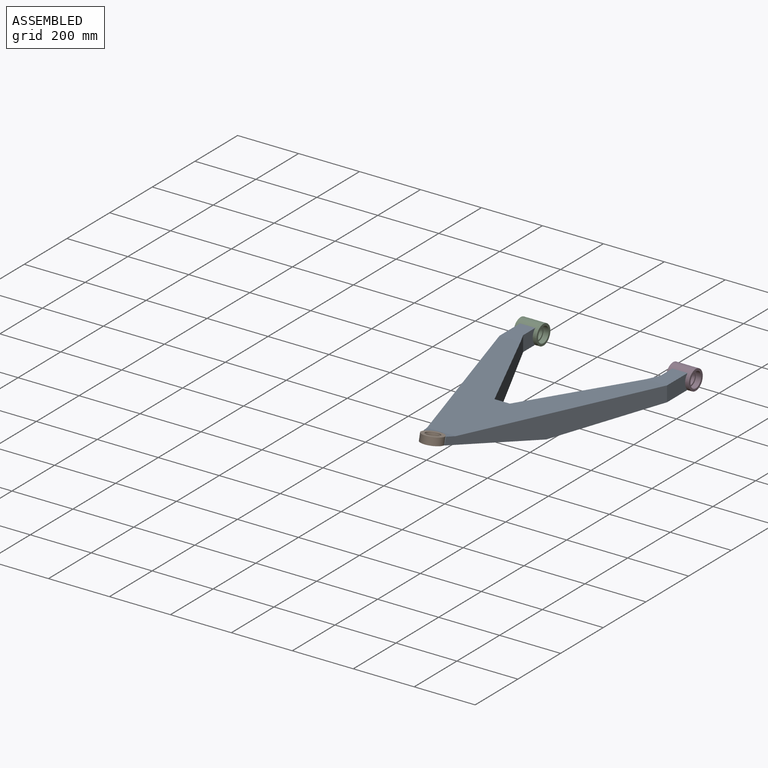
[diagram: assembled view]
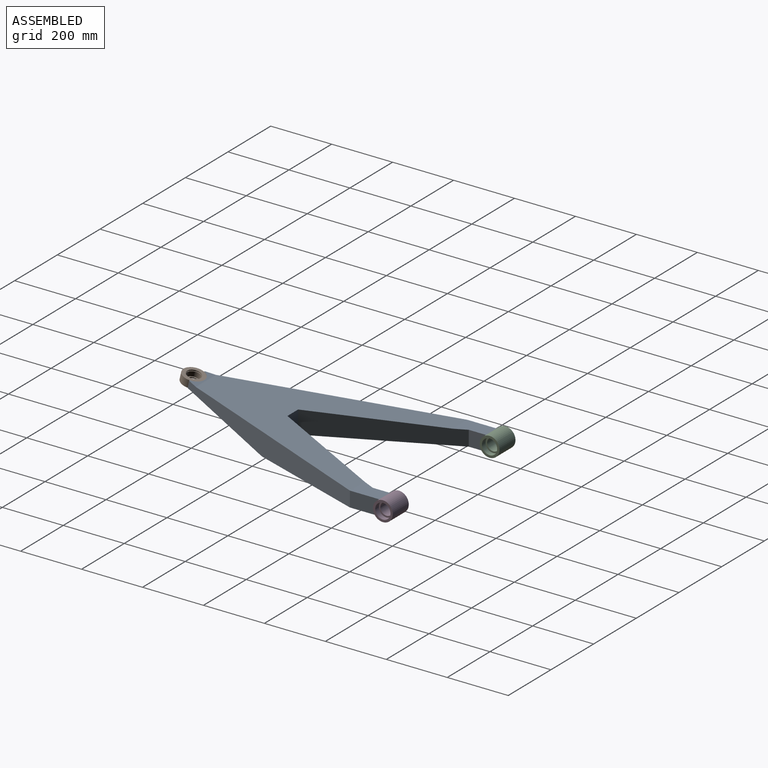
[diagram: assembled view, second angle]
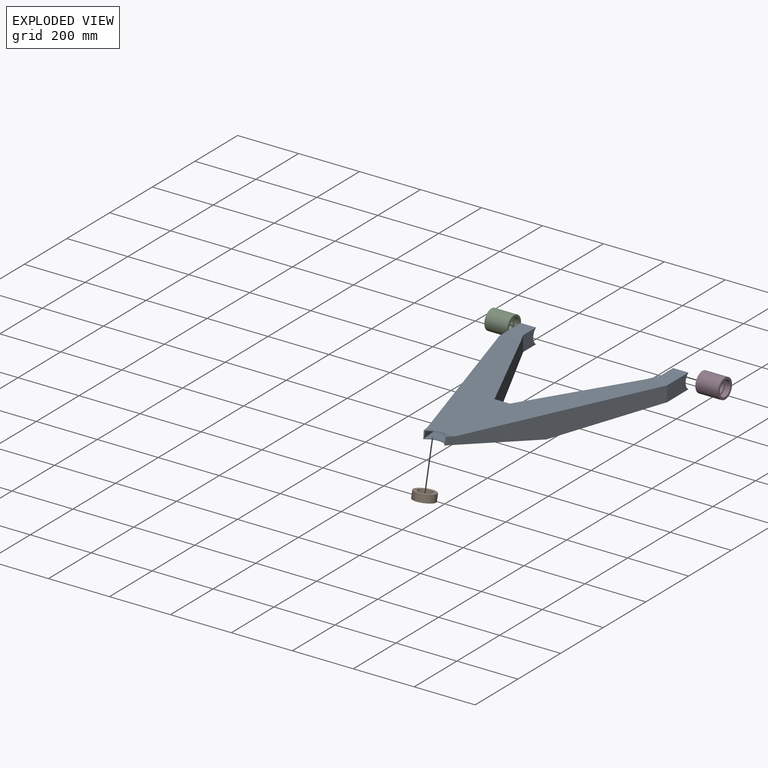
[diagram: exploded view]
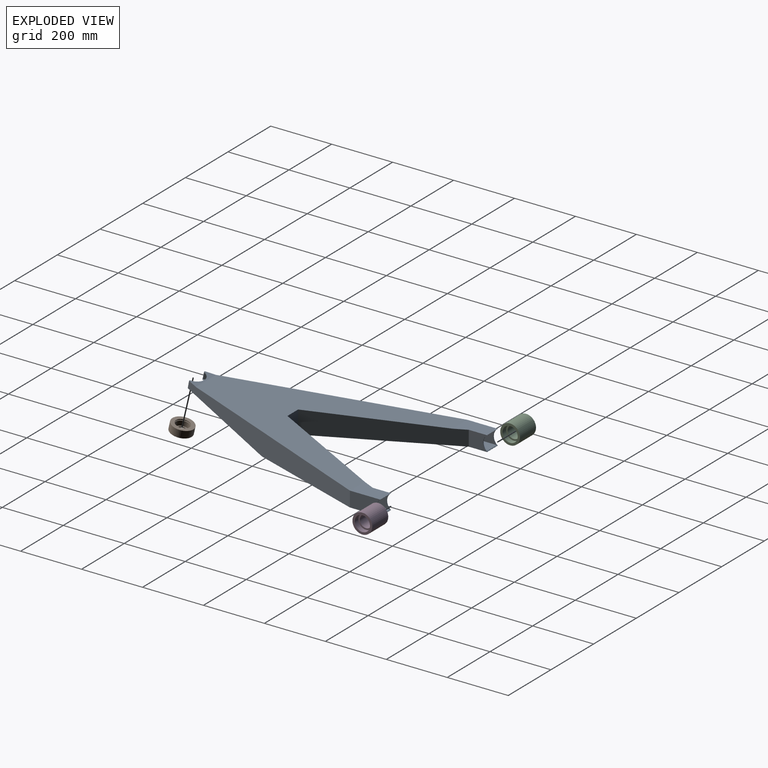
[diagram: exploded view, second angle]
ASSEMBLY  parts=4 mates=3
PART A: 43 faces, bbox 550x800x99.3 mm
  f0: cylinder r=35mm len=67.08mm, axis (0,0.23,0.97), area 447.2mm2, adj f5,f6,f22,f23,f26,f27,f41,f42
  f1: cylinder r=30mm len=50mm, axis (1,0,0), area 493.8mm2, adj f3,f15,f16,f17,f28,f35,f36,f39
  f2: plane 50x0.28mm, normal (0,1,0), area 14.1mm2, adj f4,f11,f19,f24
  f3: plane 50x0.28mm, normal (0,1,0), area 14.1mm2, adj f1,f15,f17,f20
  f4: plane 100x50mm, normal (1,0,0), area 4548.7mm2, adj f2,f8,f9,f10,f19,f24
  f5: plane 24.34x5.7mm, normal (0,-0.97,0.23), area 60.9mm2, adj f0,f6,f9,f23
  f6: plane 93.94x29.21mm, normal (0,0.23,0.97), area 1283.9mm2, adj f0,f5,f9,f18,f21,f22
  f7: plane 480x250mm, normal (0,0,-1), area 41245.7mm2, adj f14,f15,f16,f17,f18,f23
  f8: plane 480x250mm, normal (0,0,-1), area 41245.7mm2, adj f4,f9,f10,f11,f12,f23
  f9: plane 700x240mm, normal (0.95,-0.32,0), area 40895.1mm2, adj f4,f5,f6,f8,f21,f23
  f10: plane 50x0.28mm, normal (0,1,0), area 14.1mm2, adj f4,f8,f11,f24
  f11: plane 60x50mm, normal (-1,0,0), area 2548.7mm2, adj f2,f8,f10,f12,f19,f24
  f12: plane 420x200mm, normal (-0.9,0.43,0), area 28368.8mm2, adj f8,f11,f13,f19,f21
  f13: plane 74.28x50mm, normal (0,1,0), area 3714mm2, adj f12,f14,f21,f23
  f14: plane 420x200mm, normal (0.9,0.43,0), area 28368.8mm2, adj f7,f13,f15,f20,f21
  f15: plane 60x50mm, normal (1,0,0), area 2548.7mm2, adj f1,f3,f7,f14,f16,f20
  f16: plane 50x0.28mm, normal (0,1,0), area 14.1mm2, adj f1,f7,f15,f17
  f17: plane 100x50mm, normal (-1,0,0), area 4548.7mm2, adj f1,f3,f7,f16,f18,f20
  f18: plane 700x240mm, normal (-0.95,-0.32,0), area 40895.1mm2, adj f6,f7,f17,f21,f22,f23
  f19: plane 100x69.05mm, normal (0,0,1), area 5381mm2, adj f2,f4,f11,f12,f21
  f20: plane 100x69.05mm, normal (0,0,1), area 5381mm2, adj f3,f14,f15,f17,f21
  f21: plane 665.09x550mm, normal (0,0.06,1), area 126633.9mm2, adj f6,f9,f12,f13,f14,f18,f19,f20
  f22: plane 24.34x5.7mm, normal (0,-0.97,0.23), area 60.9mm2, adj f0,f6,f18,f23
  f23: plane 320x289.43mm, normal (0,-0.23,-0.97), area 57833.1mm2, adj f0,f5,f7,f8,f9,f13,f18,f22
  f24: cylinder r=30mm len=50mm, axis (1,0,0), area 493.8mm2, adj f2,f4,f10,f11,f25,f29,f31,f38
  f25: plane 97.41x46mm, normal (-1,0,0), area 4137.4mm2, adj f24,f29,f30,f38
  f26: plane 20.45x4.79mm, normal (0,0.97,-0.23), area 34.7mm2, adj f0,f27,f30,f42
  f27: plane 89.51x27.42mm, normal (0,-0.23,-0.97), area 1155.4mm2, adj f0,f26,f30,f37,f40,f41
  f28: plane 477.51x245.67mm, normal (0,0,1), area 39061.2mm2, adj f1,f34,f35,f36,f37,f42
  f29: plane 477.51x245.67mm, normal (0,0,1), area 39061.2mm2, adj f24,f25,f30,f31,f32,f42
  f30: plane 697.93x239.29mm, normal (-0.95,0.32,0), area 37896.1mm2, adj f25,f26,f27,f29,f38,f40,f42
  f31: plane 58.19x46mm, normal (1,0,0), area 2333.5mm2, adj f24,f29,f32,f38
  f32: plane 421.55x200.74mm, normal (0.9,-0.43,0), area 26638.5mm2, adj f29,f31,f33,f38,f40,f42
  f33: plane 69.88x52.53mm, normal (0,-1,0), area 3670.5mm2, adj f32,f34,f40,f42
  f34: plane 421.55x200.74mm, normal (-0.9,-0.43,0), area 26638.5mm2, adj f28,f33,f35,f39,f40,f42
  f35: plane 58.19x46mm, normal (-1,0,0), area 2333.5mm2, adj f1,f28,f34,f39
  f36: plane 97.41x46mm, normal (1,0,0), area 4137.4mm2, adj f1,f28,f37,f39
  f37: plane 697.93x239.29mm, normal (0.95,0.32,0), area 37896.1mm2, adj f27,f28,f36,f39,f40,f41,f42
  f38: plane 97.8x64.86mm, normal (0,0,-1), area 4872.5mm2, adj f24,f25,f30,f31,f32,f40
  f39: plane 97.8x64.86mm, normal (0,0,-1), area 4872.5mm2, adj f1,f34,f35,f36,f37,f40
  f40: plane 665.32x545.73mm, normal (0,-0.06,-1), area 122039.8mm2, adj f27,f30,f32,f33,f34,f37,f38,f39
  f41: plane 20.45x4.79mm, normal (0,0.97,-0.23), area 34.7mm2, adj f0,f27,f37,f42
  f42: plane 317.83x285.36mm, normal (0,0.23,0.97), area 56356.7mm2, adj f0,f26,f28,f29,f30,f32,f33,f34
PART B: 10 faces, bbox 70x70x24.5 mm
  f0: plane 70x70mm, normal (0,0,-1), area 2773.2mm2, adj f1,f9
  f1: cylinder r=18.5mm len=37mm, axis (0,0,1), area 348.7mm2, adj f0,f2
  f2: plane 45x45mm, normal (0,0,1), area 515.2mm2, adj f1,f3
  f3: cylinder r=22.5mm len=45mm, axis (0,0,1), area 2332.6mm2, adj f2,f4
  f4: plane 51x51mm, normal (0,0,1), area 452.4mm2, adj f3,f5
  f5: cylinder r=25.5mm len=51mm, axis (0,0,1), area 320.4mm2, adj f4,f6
  f6: plane 51x51mm, normal (0,0,-1), area 452.4mm2, adj f5,f7
  f7: cylinder r=22.5mm len=45mm, axis (0,0,1), area 424.1mm2, adj f6,f8
  f8: plane 70x70mm, normal (0,0,1), area 2258mm2, adj f7,f9
  f9: cylinder r=35mm len=70mm, axis (0,0,1), area 5387.8mm2, adj f0,f8
PART C: 8 faces, bbox 75x65x65 mm
  f0: cylinder r=20mm len=41mm, axis (-1,0,0), area 5152.2mm2, adj f5,f7
  f1: cylinder r=32.5mm len=75mm, axis (-1,0,0), area 15315.3mm2, adj f2,f3
  f2: plane 65x65mm, normal (1,0,0), area 1354.8mm2, adj f1,f4
  f3: plane 65x65mm, normal (-1,0,0), area 1354.8mm2, adj f1,f6
  f4: cylinder r=25mm len=50mm, axis (1,0,0), area 2670.4mm2, adj f2,f5
  f5: plane 50x50mm, normal (1,0,0), area 706.9mm2, adj f0,f4
  f6: cylinder r=25mm len=50mm, axis (-1,0,0), area 2670.4mm2, adj f3,f7
  f7: plane 50x50mm, normal (-1,0,0), area 706.9mm2, adj f0,f6
PART D: same geometry as C
PLACE A t=(-230.06,-384.97,-100.67)mm fixed
PLACE B rot(axis=(-1,0,0),13.2deg) t=(-265.06,-617.8,-173.15)mm
PLACE C t=(-480.06,208.88,-225.67)mm
PLACE D rot(axis=(1,0,0),90deg) t=(19.94,208.88,-225.67)mm
MATE fastened A.f0 <-> B.f1  axis (0,0.23,0.97) through (-230.06,-615,-161.22)mm
MATE fastened A.f1 <-> C.f0  axis (1,0,0) through (-480.06,208.88,-225.67)mm
MATE fastened A.f1 <-> D.f0  axis (1,0,0) through (19.94,208.88,-225.67)mm
